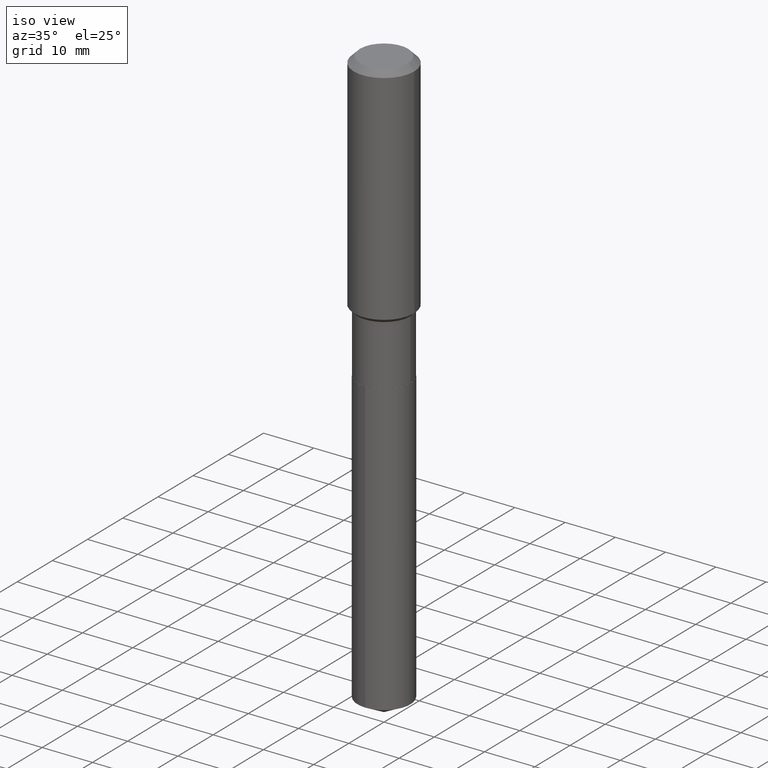
[diagram: clean part render]
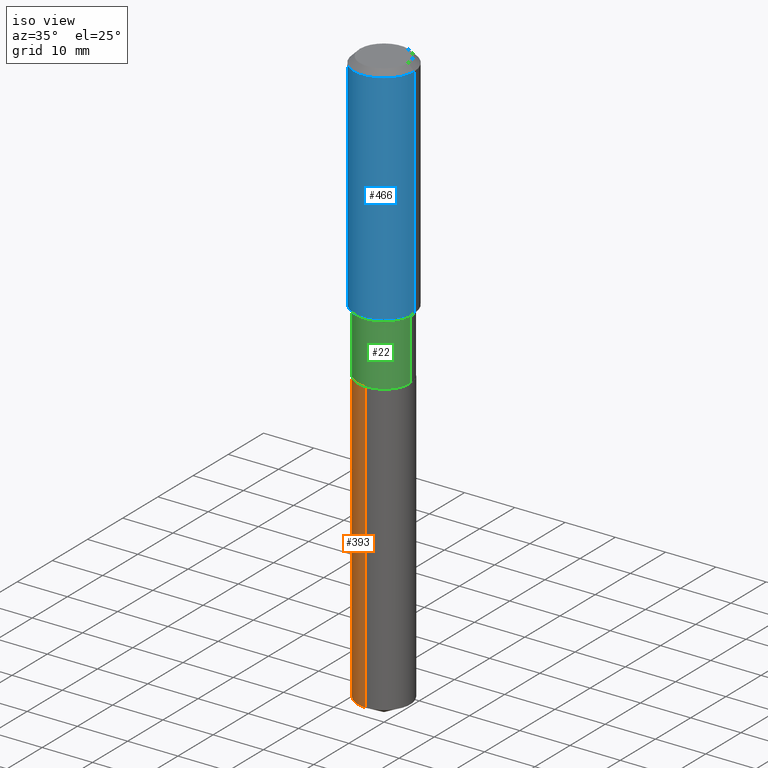
[diagram: same view with three faces highlighted in distinct colors, each labeled with its STEP entity id]
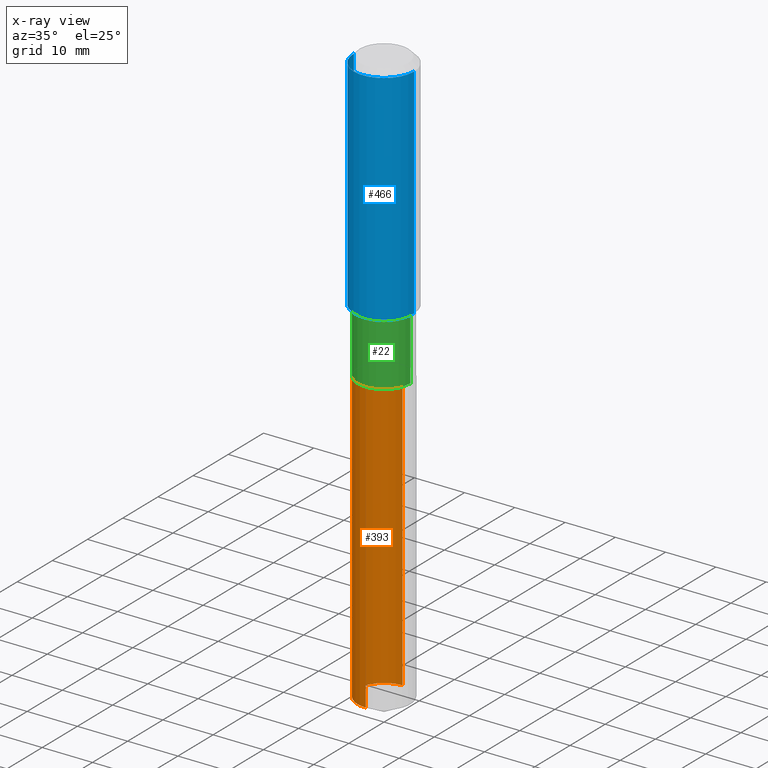
[diagram: x-ray of the same camera — body ghosted, the three highlighted faces saturated]
A machine part, iso view with three faces highlighted in distinct colors.
The next image is the same camera in x-ray (body ghosted, the three faces saturated) — at least one of them is partly hidden behind the body in this view.
Their STEP definitions:

[orange] entity #393 — the highlighted cylindrical surface (edge-blend (fillet) strip) has radius 5.2502 mm, axis along (-0, 0, 1).
#24 = CYLINDRICAL_SURFACE ( 'NONE', #94, 0.2067000000000000226 ) ;
#47 = CIRCLE ( 'NONE', #277, 0.2067000000000000226 ) ;
#65 = EDGE_CURVE ( 'NONE', #197, #408, #304, .T. ) ;
#94 = AXIS2_PLACEMENT_3D ( 'NONE', #448, #409, #294 ) ;
#124 = DIRECTION ( 'NONE',  ( -2.445464135208139913E-29, 3.491488027948059802E-15, 1.000000000000000000 ) ) ;
#133 = VECTOR ( 'NONE', #421, 39.37007874015748143 ) ;
#134 = CARTESIAN_POINT ( 'NONE',  ( -1.443378385477640183E-15, -0.2067000000000157878, -4.535795660475572255 ) ) ;
#136 = FACE_OUTER_BOUND ( 'NONE', #188, .T. ) ;
#159 = EDGE_CURVE ( 'NONE', #197, #301, #346, .T. ) ;
#164 = CARTESIAN_POINT ( 'NONE',  ( 5.536052283441911489E-29, -7.904015454873111947E-15, -2.263799999999999812 ) ) ;
#166 = DIRECTION ( 'NONE',  ( -2.445464135208139913E-29, 3.491488027948060197E-15, 1.000000000000000000 ) ) ;
#180 = ORIENTED_EDGE ( 'NONE', *, *, #201, .F. ) ;
#188 = EDGE_LOOP ( 'NONE', ( #487, #281, #295, #180 ) ) ;
#197 = VERTEX_POINT ( 'NONE', #247 ) ;
#201 = EDGE_CURVE ( 'NONE', #408, #474, #47, .T. ) ;
#247 = CARTESIAN_POINT ( 'NONE',  ( 1.468691834816237291E-15, 0.2066999999999841187, -4.535795660475574032 ) ) ;
#257 = AXIS2_PLACEMENT_3D ( 'NONE', #381, #268, #414 ) ;
#268 = DIRECTION ( 'NONE',  ( -2.445464135208139913E-29, 3.491488027948060197E-15, 1.000000000000000000 ) ) ;
#274 = CARTESIAN_POINT ( 'NONE',  ( 1.468691834816182268E-15, 0.2066999999999921123, -2.263800000000000701 ) ) ;
#277 = AXIS2_PLACEMENT_3D ( 'NONE', #164, #166, #431 ) ;
#281 = ORIENTED_EDGE ( 'NONE', *, *, #159, .T. ) ;
#294 = DIRECTION ( 'NONE',  ( -6.982962677686265133E-15, -1.000000000000000000, 3.964946289788480107E-15 ) ) ;
#295 = ORIENTED_EDGE ( 'NONE', *, *, #356, .T. ) ;
#301 = VERTEX_POINT ( 'NONE', #134 ) ;
#304 = LINE ( 'NONE', #274, #133 ) ;
#320 = LINE ( 'NONE', #467, #347 ) ;
#346 = CIRCLE ( 'NONE', #257, 0.2067000000000000226 ) ;
#347 = VECTOR ( 'NONE', #124, 39.37007874015748143 ) ;
#356 = EDGE_CURVE ( 'NONE', #301, #474, #320, .T. ) ;
#381 = CARTESIAN_POINT ( 'NONE',  ( 1.109213618648345564E-28, -1.583666110297352308E-14, -4.535795660475573143 ) ) ;
#393 = ADVANCED_FACE ( 'NONE', ( #136 ), #24, .T. ) ;
#408 = VERTEX_POINT ( 'NONE', #417 ) ;
#409 = DIRECTION ( 'NONE',  ( -2.445464135208139913E-29, 3.491488027948060197E-15, 1.000000000000000000 ) ) ;
#414 = DIRECTION ( 'NONE',  ( -6.982962677686265133E-15, -1.000000000000000000, 2.643297526525653668E-15 ) ) ;
#417 = CARTESIAN_POINT ( 'NONE',  ( 1.468691834816238474E-15, 0.2066999999999921123, -2.263800000000000701 ) ) ;
#421 = DIRECTION ( 'NONE',  ( -2.445464135208139913E-29, 3.491488027948059802E-15, 1.000000000000000000 ) ) ;
#431 = DIRECTION ( 'NONE',  ( -6.982962677686265133E-15, -1.000000000000000000, 3.964946289788480107E-15 ) ) ;
#448 = CARTESIAN_POINT ( 'NONE',  ( 5.536052283441911489E-29, -7.904015454873111947E-15, -2.263799999999999812 ) ) ;
#467 = CARTESIAN_POINT ( 'NONE',  ( -1.443378385477695995E-15, -0.2067000000000079052, -2.263799999999998924 ) ) ;
#474 = VERTEX_POINT ( 'NONE', #485 ) ;
#485 = CARTESIAN_POINT ( 'NONE',  ( -1.443378385477695995E-15, -0.2067000000000079052, -2.263799999999998924 ) ) ;
#487 = ORIENTED_EDGE ( 'NONE', *, *, #65, .F. ) ;

[blue] entity #466 — the highlighted cylindrical surface (partial cylindrical patch) has radius 5.9995 mm, axis along (-0, 0, 1).
#7 = CARTESIAN_POINT ( 'NONE',  ( -0.2362000000000001043, 1.678301941865357380E-15, -1.161852468318209317E-29 ) ) ;
#12 = CARTESIAN_POINT ( 'NONE',  ( 4.301335083199035081E-29, -6.141166526891206646E-15, -1.758899999999999464 ) ) ;
#26 = ORIENTED_EDGE ( 'NONE', *, *, #279, .F. ) ;
#32 = CYLINDRICAL_SURFACE ( 'NONE', #226, 0.2362000000000001043 ) ;
#45 = DIRECTION ( 'NONE',  ( -2.445468806185136597E-29, 3.491481338843145583E-15, 1.000000000000000000 ) ) ;
#51 = VERTEX_POINT ( 'NONE', #232 ) ;
#55 = EDGE_CURVE ( 'NONE', #216, #51, #339, .T. ) ;
#60 = FACE_OUTER_BOUND ( 'NONE', #66, .T. ) ;
#64 = VERTEX_POINT ( 'NONE', #146 ) ;
#66 = EDGE_LOOP ( 'NONE', ( #252, #144, #177, #26 ) ) ;
#86 = DIRECTION ( 'NONE',  ( 1.000000000000000000, -6.982962677686266711E-15, 0.000000000000000000 ) ) ;
#92 = CARTESIAN_POINT ( 'NONE',  ( 0.2362000000000001043, -1.649375784469496920E-15, 1.151752954443000508E-29 ) ) ;
#121 = VECTOR ( 'NONE', #461, 39.37007874015748143 ) ;
#138 = CIRCLE ( 'NONE', #269, 0.2361999999999999933 ) ;
#144 = ORIENTED_EDGE ( 'NONE', *, *, #204, .T. ) ;
#146 = CARTESIAN_POINT ( 'NONE',  ( 0.2362000000000002153, -7.790542311360703960E-15, -1.758899999999999464 ) ) ;
#165 = EDGE_CURVE ( 'NONE', #64, #233, #365, .T. ) ;
#177 = ORIENTED_EDGE ( 'NONE', *, *, #165, .T. ) ;
#181 = DIRECTION ( 'NONE',  ( -2.445468806185136597E-29, 3.491481338843145583E-15, 1.000000000000000000 ) ) ;
#204 = EDGE_CURVE ( 'NONE', #216, #64, #424, .T. ) ;
#216 = VERTEX_POINT ( 'NONE', #355 ) ;
#226 = AXIS2_PLACEMENT_3D ( 'NONE', #341, #181, #338 ) ;
#232 = CARTESIAN_POINT ( 'NONE',  ( -0.2361999999999999933, -1.474750110803721400E-15, -0.04724000000000028177 ) ) ;
#233 = VERTEX_POINT ( 'NONE', #395 ) ;
#240 = DIRECTION ( 'NONE',  ( 1.000000000000000000, -6.982962677686266711E-15, 0.000000000000000000 ) ) ;
#245 = VECTOR ( 'NONE', #423, 39.37007874015748143 ) ;
#252 = ORIENTED_EDGE ( 'NONE', *, *, #55, .F. ) ;
#269 = AXIS2_PLACEMENT_3D ( 'NONE', #427, #45, #86 ) ;
#279 = EDGE_CURVE ( 'NONE', #51, #233, #138, .T. ) ;
#338 = DIRECTION ( 'NONE',  ( 1.000000000000000000, -6.982962677686266711E-15, 4.876176775795935793E-29 ) ) ;
#339 = LINE ( 'NONE', #7, #245 ) ;
#341 = CARTESIAN_POINT ( 'NONE',  ( 0.000000000000000000, 0.000000000000000000, 0.000000000000000000 ) ) ;
#355 = CARTESIAN_POINT ( 'NONE',  ( -0.2362000000000002153, -4.462864585025847885E-15, -1.758899999999999464 ) ) ;
#365 = LINE ( 'NONE', #92, #121 ) ;
#394 = DIRECTION ( 'NONE',  ( -2.445468806185136597E-29, 3.491481338843145583E-15, 1.000000000000000000 ) ) ;
#395 = CARTESIAN_POINT ( 'NONE',  ( 0.2361999999999999933, -1.814313362916447440E-15, -0.04724000000000028177 ) ) ;
#423 = DIRECTION ( 'NONE',  ( -2.445468806185136877E-29, 3.491481338843145188E-15, 1.000000000000000000 ) ) ;
#424 = CIRCLE ( 'NONE', #444, 0.2362000000000002153 ) ;
#427 = CARTESIAN_POINT ( 'NONE',  ( 1.155239464041865506E-30, -1.649375784469511859E-16, -0.04724000000000028177 ) ) ;
#444 = AXIS2_PLACEMENT_3D ( 'NONE', #12, #394, #240 ) ;
#461 = DIRECTION ( 'NONE',  ( -2.445468806185136877E-29, 3.491481338843145188E-15, 1.000000000000000000 ) ) ;
#466 = ADVANCED_FACE ( 'NONE', ( #60 ), #32, .T. ) ;

[green] entity #22 — the highlighted cylindrical surface (edge-blend (fillet) strip) has radius 5.2502 mm, axis along (-0, 0, 1).
#13 = CARTESIAN_POINT ( 'NONE',  ( 0.2066999999999999671, -1.443378385477751018E-15, 1.007905739557019780E-29 ) ) ;
#22 = ADVANCED_FACE ( 'NONE', ( #35 ), #486, .T. ) ;
#28 = AXIS2_PLACEMENT_3D ( 'NONE', #40, #377, #453 ) ;
#35 = FACE_OUTER_BOUND ( 'NONE', #337, .T. ) ;
#40 = CARTESIAN_POINT ( 'NONE',  ( 4.373476412981496355E-29, -6.244165226387079301E-15, -1.788399999999999324 ) ) ;
#41 = CARTESIAN_POINT ( 'NONE',  ( 5.534829549038819808E-29, -7.902269714203691232E-15, -2.263300000000000090 ) ) ;
#72 = DIRECTION ( 'NONE',  ( 1.000000000000000000, -6.982962677686266711E-15, 4.876176775795935793E-29 ) ) ;
#99 = ORIENTED_EDGE ( 'NONE', *, *, #241, .T. ) ;
#103 = CARTESIAN_POINT ( 'NONE',  ( 0.2066999999999999393, -7.687543611864829727E-15, -1.788399999999999324 ) ) ;
#105 = VERTEX_POINT ( 'NONE', #451 ) ;
#116 = DIRECTION ( 'NONE',  ( -2.445468806185136597E-29, 3.491481338843145583E-15, 1.000000000000000000 ) ) ;
#130 = DIRECTION ( 'NONE',  ( -2.445468806185136877E-29, 3.491481338843145188E-15, 1.000000000000000000 ) ) ;
#137 = EDGE_CURVE ( 'NONE', #258, #449, #353, .T. ) ;
#142 = ORIENTED_EDGE ( 'NONE', *, *, #309, .T. ) ;
#176 = LINE ( 'NONE', #13, #336 ) ;
#185 = VECTOR ( 'NONE', #271, 39.37007874015748143 ) ;
#191 = CARTESIAN_POINT ( 'NONE',  ( 0.000000000000000000, 0.000000000000000000, 0.000000000000000000 ) ) ;
#203 = AXIS2_PLACEMENT_3D ( 'NONE', #41, #207, #358 ) ;
#207 = DIRECTION ( 'NONE',  ( -2.445468806185136597E-29, 3.491481338843145583E-15, 1.000000000000000000 ) ) ;
#222 = CARTESIAN_POINT ( 'NONE',  ( 0.2067000000000000226, -9.345648099681442448E-15, -2.263300000000000090 ) ) ;
#241 = EDGE_CURVE ( 'NONE', #415, #449, #176, .T. ) ;
#243 = CARTESIAN_POINT ( 'NONE',  ( -0.2066999999999999393, -5.604525635479257824E-15, -1.788399999999999324 ) ) ;
#258 = VERTEX_POINT ( 'NONE', #243 ) ;
#271 = DIRECTION ( 'NONE',  ( -2.445468806185136877E-29, 3.491481338843145188E-15, 1.000000000000000000 ) ) ;
#303 = CARTESIAN_POINT ( 'NONE',  ( -0.2066999999999999671, 1.468691834816126850E-15, -1.016743883155689005E-29 ) ) ;
#306 = LINE ( 'NONE', #303, #185 ) ;
#309 = EDGE_CURVE ( 'NONE', #105, #415, #413, .T. ) ;
#336 = VECTOR ( 'NONE', #130, 39.37007874015748143 ) ;
#337 = EDGE_LOOP ( 'NONE', ( #340, #142, #99, #481 ) ) ;
#340 = ORIENTED_EDGE ( 'NONE', *, *, #399, .F. ) ;
#353 = CIRCLE ( 'NONE', #28, 0.2066999999999999393 ) ;
#358 = DIRECTION ( 'NONE',  ( 1.000000000000000000, -6.982962677686269866E-15, 0.000000000000000000 ) ) ;
#376 = AXIS2_PLACEMENT_3D ( 'NONE', #191, #116, #72 ) ;
#377 = DIRECTION ( 'NONE',  ( -2.445468806185136597E-29, 3.491481338843145583E-15, 1.000000000000000000 ) ) ;
#399 = EDGE_CURVE ( 'NONE', #105, #258, #306, .T. ) ;
#413 = CIRCLE ( 'NONE', #203, 0.2067000000000000226 ) ;
#415 = VERTEX_POINT ( 'NONE', #222 ) ;
#449 = VERTEX_POINT ( 'NONE', #103 ) ;
#451 = CARTESIAN_POINT ( 'NONE',  ( -0.2067000000000000226, -5.604525635479257035E-15, -2.263300000000000090 ) ) ;
#453 = DIRECTION ( 'NONE',  ( 1.000000000000000000, -6.982962677686264344E-15, 0.000000000000000000 ) ) ;
#481 = ORIENTED_EDGE ( 'NONE', *, *, #137, .F. ) ;
#486 = CYLINDRICAL_SURFACE ( 'NONE', #376, 0.2066999999999999671 ) ;